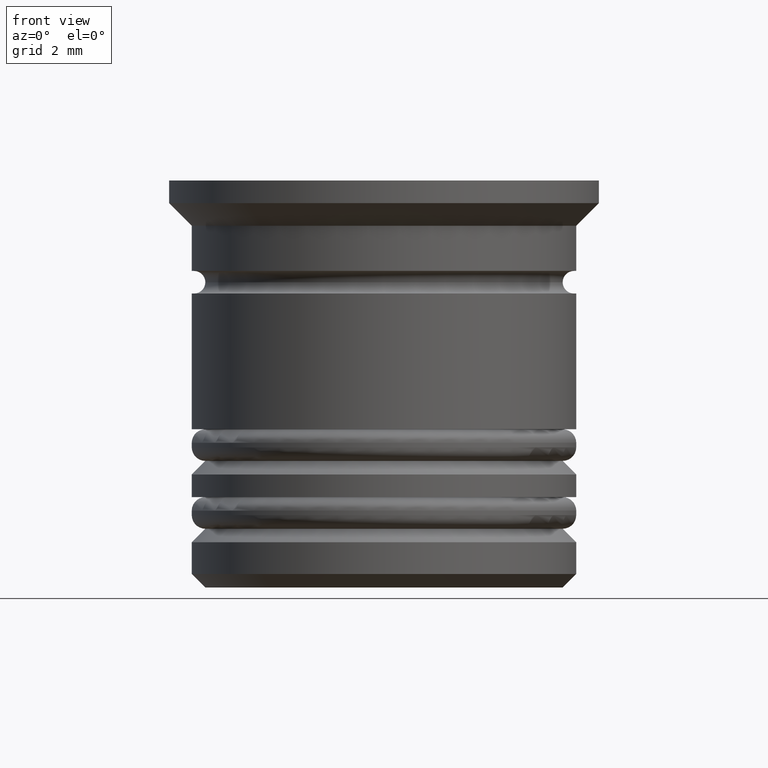
[diagram: clean part render]
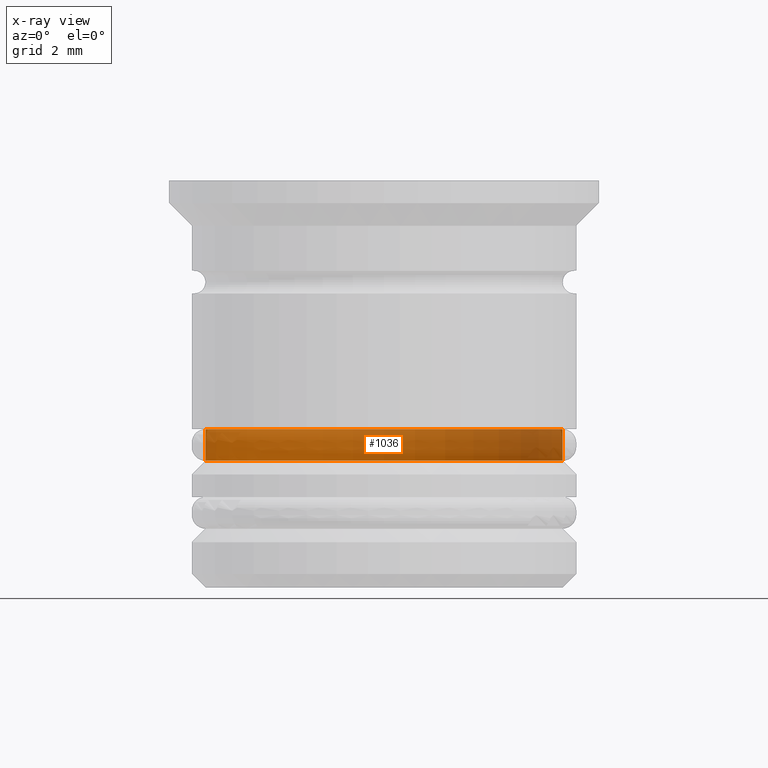
[diagram: x-ray — body ghosted, one internal face saturated and labeled with its STEP entity id]
A machine part, front view, then the same camera in x-ray: the body is ghosted and one INTERNAL B-rep face — a face not visible from any outside direction — is saturated and labeled: STEP entity #1036.
In plain terms, the highlighted cylindrical surface (partial cylindrical patch) has radius 3.95 mm, axis along (-0, -0, 1).
Its self-contained STEP definition (entity closure, byte-faithful):
#49 = ORIENTED_EDGE ( 'NONE', *, *, #1503, .T. ) ;
#62 = CARTESIAN_POINT ( 'NONE',  ( 0.000000000000000000, 0.000000000000000000, -6.200000000000004619 ) ) ;
#110 = CARTESIAN_POINT ( 'NONE',  ( 3.950000000000000178, 0.000000000000000000, -6.200000000000004619 ) ) ;
#124 = CARTESIAN_POINT ( 'NONE',  ( -3.950000000000000178, 4.837354856632045057E-16, 0.000000000000000000 ) ) ;
#166 = DIRECTION ( 'NONE',  ( 1.000000000000000000, 0.000000000000000000, 0.000000000000000000 ) ) ;
#171 = FACE_OUTER_BOUND ( 'NONE', #1937, .T. ) ;
#216 = VERTEX_POINT ( 'NONE', #610 ) ;
#291 = CYLINDRICAL_SURFACE ( 'NONE', #318, 3.950000000000000178 ) ;
#318 = AXIS2_PLACEMENT_3D ( 'NONE', #1225, #1857, #447 ) ;
#323 = DIRECTION ( 'NONE',  ( -0.000000000000000000, -0.000000000000000000, 1.000000000000000000 ) ) ;
#337 = DIRECTION ( 'NONE',  ( -0.000000000000000000, -0.000000000000000000, 1.000000000000000000 ) ) ;
#407 = CARTESIAN_POINT ( 'NONE',  ( -3.950000000000000178, 4.837354856632045057E-16, -5.499999999999999112 ) ) ;
#428 = EDGE_CURVE ( 'NONE', #822, #216, #1338, .T. ) ;
#436 = LINE ( 'NONE', #124, #2000 ) ;
#447 = DIRECTION ( 'NONE',  ( 1.000000000000000000, 0.000000000000000000, 0.000000000000000000 ) ) ;
#533 = ORIENTED_EDGE ( 'NONE', *, *, #1093, .F. ) ;
#535 = LINE ( 'NONE', #1915, #1734 ) ;
#610 = CARTESIAN_POINT ( 'NONE',  ( -3.950000000000000178, 4.837354856632045057E-16, -6.200000000000004619 ) ) ;
#633 = AXIS2_PLACEMENT_3D ( 'NONE', #62, #1934, #684 ) ;
#684 = DIRECTION ( 'NONE',  ( -1.000000000000000000, 0.000000000000000000, 0.000000000000000000 ) ) ;
#822 = VERTEX_POINT ( 'NONE', #110 ) ;
#841 = ORIENTED_EDGE ( 'NONE', *, *, #1395, .F. ) ;
#859 = ORIENTED_EDGE ( 'NONE', *, *, #428, .T. ) ;
#978 = AXIS2_PLACEMENT_3D ( 'NONE', #1249, #323, #166 ) ;
#1036 = ADVANCED_FACE ( 'NONE', ( #171 ), #291, .T. ) ;
#1048 = DIRECTION ( 'NONE',  ( -0.000000000000000000, -0.000000000000000000, 1.000000000000000000 ) ) ;
#1081 = CIRCLE ( 'NONE', #978, 3.950000000000000178 ) ;
#1093 = EDGE_CURVE ( 'NONE', #822, #1893, #535, .T. ) ;
#1225 = CARTESIAN_POINT ( 'NONE',  ( 0.000000000000000000, 0.000000000000000000, 0.000000000000000000 ) ) ;
#1249 = CARTESIAN_POINT ( 'NONE',  ( 0.000000000000000000, 0.000000000000000000, -5.499999999999999112 ) ) ;
#1327 = CARTESIAN_POINT ( 'NONE',  ( 3.950000000000000178, 0.000000000000000000, -5.499999999999999112 ) ) ;
#1338 = CIRCLE ( 'NONE', #633, 3.950000000000000178 ) ;
#1395 = EDGE_CURVE ( 'NONE', #1893, #1797, #1081, .T. ) ;
#1503 = EDGE_CURVE ( 'NONE', #216, #1797, #436, .T. ) ;
#1734 = VECTOR ( 'NONE', #337, 1000.000000000000000 ) ;
#1797 = VERTEX_POINT ( 'NONE', #407 ) ;
#1857 = DIRECTION ( 'NONE',  ( -0.000000000000000000, -0.000000000000000000, 1.000000000000000000 ) ) ;
#1893 = VERTEX_POINT ( 'NONE', #1327 ) ;
#1915 = CARTESIAN_POINT ( 'NONE',  ( 3.950000000000000178, 0.000000000000000000, 0.000000000000000000 ) ) ;
#1934 = DIRECTION ( 'NONE',  ( -0.000000000000000000, -0.000000000000000000, 1.000000000000000000 ) ) ;
#1937 = EDGE_LOOP ( 'NONE', ( #859, #49, #841, #533 ) ) ;
#2000 = VECTOR ( 'NONE', #1048, 1000.000000000000000 ) ;